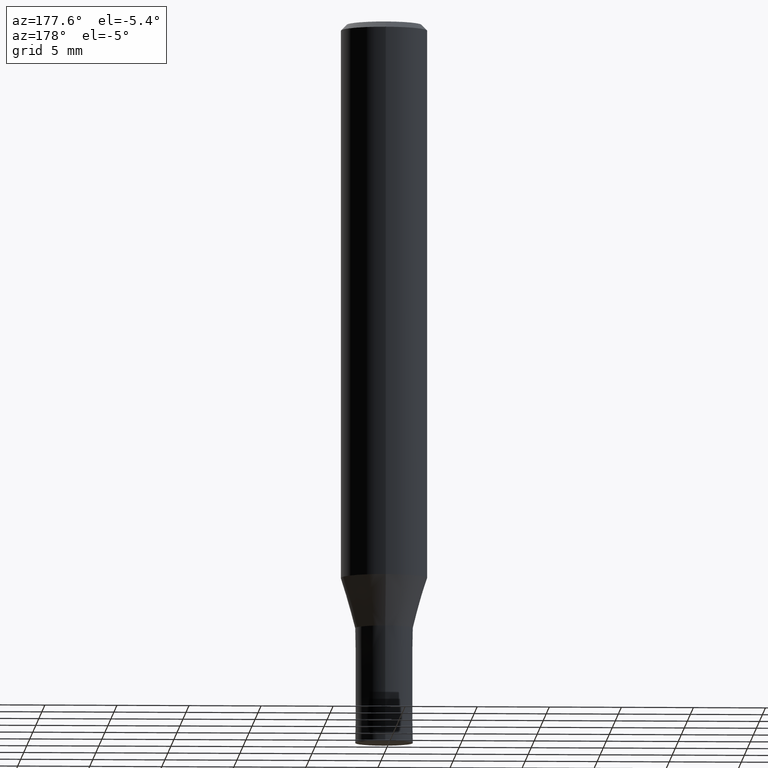
[diagram: clean part render]
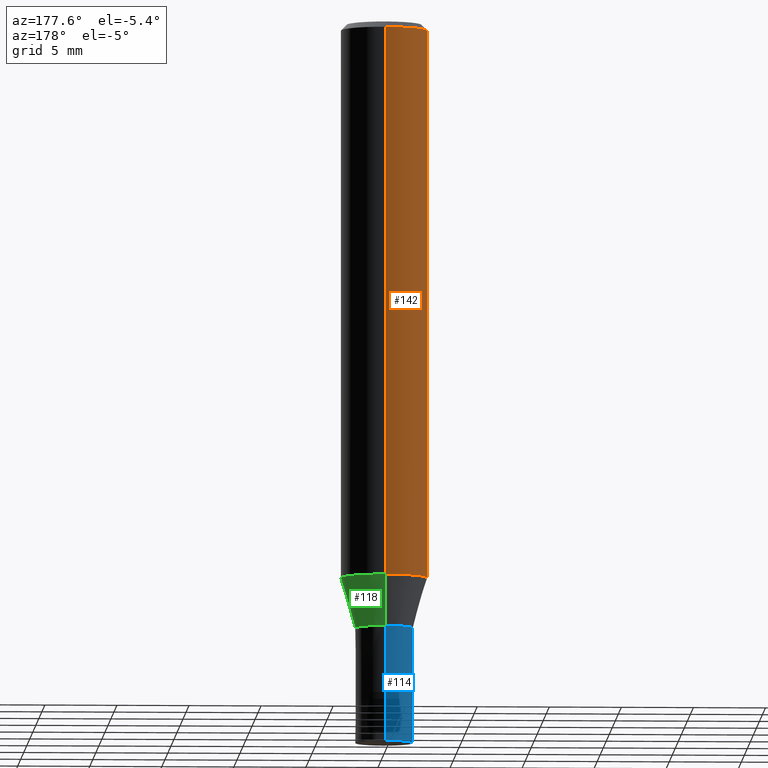
[diagram: same view with three faces highlighted in distinct colors, each labeled with its STEP entity id]
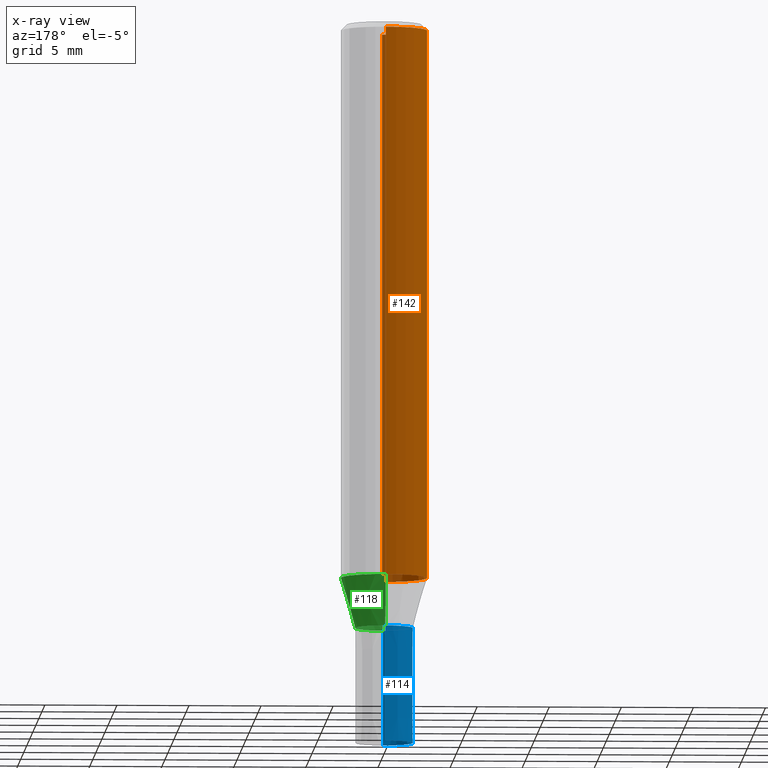
[diagram: x-ray of the same camera — body ghosted, the three highlighted faces saturated]
A machine part, auxiliary view with three faces highlighted in distinct colors.
The next image is the same camera in x-ray (body ghosted, the three faces saturated) — at least one of them is partly hidden behind the body in this view.
Their STEP definitions:

[orange] entity #142 — the highlighted cylindrical surface (partial cylindrical patch) has radius 3 mm, axis along (-0, -0, 1).
#90=VERTEX_POINT('',#212);
#106=VERTEX_POINT('',#229);
#126=VERTEX_POINT('',#254);
#132=EDGE_CURVE('',#162,#106,#260,.T.);
#140=EDGE_CURVE('',#106,#126,#269,.T.);
#142=ADVANCED_FACE('',(#271),#272,.T.);
#150=EDGE_CURVE('',#126,#90,#280,.T.);
#162=VERTEX_POINT('',#294);
#168=EDGE_CURVE('',#162,#90,#300,.T.);
#212=CARTESIAN_POINT('',(0.0,3.0,-38.513));
#229=CARTESIAN_POINT('',(3.67381906146713E-016,-3.0,-0.399999999999999));
#254=CARTESIAN_POINT('',(0.0,3.0,-0.399999999999999));
#260=LINE('',#397,#398);
#269=CIRCLE('',#412,3.0);
#271=FACE_OUTER_BOUND('',#414,.T.);
#272=CYLINDRICAL_SURFACE('',#415,3.0);
#280=LINE('',#426,#427);
#294=CARTESIAN_POINT('',(3.67381906146713E-016,-3.0,-38.513));
#300=CIRCLE('',#452,3.0);
#397=CARTESIAN_POINT('',(3.67381906146713E-016,-3.0,-19.4565));
#398=VECTOR('',#547,1.0);
#412=AXIS2_PLACEMENT_3D('',#558,#559,#560);
#414=EDGE_LOOP('',(#562,#563,#564,#565));
#415=AXIS2_PLACEMENT_3D('',#566,#567,#568);
#426=CARTESIAN_POINT('',(-3.67381906146713E-016,3.0,-19.4565));
#427=VECTOR('',#570,1.0);
#452=AXIS2_PLACEMENT_3D('',#595,#596,#597);
#547=DIRECTION('',(-0.0,-0.0,1.0));
#558=CARTESIAN_POINT('',(0.0,0.0,-0.399999999999999));
#559=DIRECTION('',(0.0,0.0,-1.0));
#560=DIRECTION('',(0.0,1.0,0.0));
#562=ORIENTED_EDGE('',*,*,#150,.T.);
#563=ORIENTED_EDGE('',*,*,#168,.F.);
#564=ORIENTED_EDGE('',*,*,#132,.T.);
#565=ORIENTED_EDGE('',*,*,#140,.T.);
#566=CARTESIAN_POINT('',(0.0,0.0,-19.4565));
#567=DIRECTION('',(-0.0,-0.0,1.0));
#568=DIRECTION('',(0.0,1.0,0.0));
#570=DIRECTION('',(0.0,0.0,-1.0));
#595=CARTESIAN_POINT('',(0.0,0.0,-38.513));
#596=DIRECTION('',(0.0,0.0,-1.0));
#597=DIRECTION('',(0.0,1.0,0.0));

[blue] entity #114 — the highlighted conical surface has half-angle 0.001 deg.
#84=VERTEX_POINT('',#205);
#92=EDGE_CURVE('',#180,#178,#214,.T.);
#114=ADVANCED_FACE('',(#237),#238,.T.);
#134=EDGE_CURVE('',#156,#180,#262,.T.);
#144=EDGE_CURVE('',#178,#84,#274,.T.);
#156=VERTEX_POINT('',#286);
#166=EDGE_CURVE('',#156,#84,#298,.T.);
#178=VERTEX_POINT('',#313);
#180=VERTEX_POINT('',#315);
#205=CARTESIAN_POINT('',(0.0,2.0,-50.0));
#214=CIRCLE('',#341,1.9999);
#237=FACE_OUTER_BOUND('',#369,.T.);
#238=CONICAL_SURFACE('',#370,1.99995,1.24999999993476E-005);
#262=LINE('',#401,#402);
#274=LINE('',#418,#419);
#286=CARTESIAN_POINT('',(2.44921270764475E-016,-2.0,-50.0));
#298=CIRCLE('',#449,2.0);
#313=CARTESIAN_POINT('',(0.0,1.9999,-42.0));
#315=CARTESIAN_POINT('',(2.44909024700937E-016,-1.9999,-42.0));
#341=AXIS2_PLACEMENT_3D('',#485,#486,#487);
#369=EDGE_LOOP('',(#509,#510,#511,#512));
#370=AXIS2_PLACEMENT_3D('',#513,#514,#515);
#401=CARTESIAN_POINT('',(2.44915147732706E-016,-1.99995,-46.0));
#402=VECTOR('',#548,1.0);
#418=CARTESIAN_POINT('',(-2.44915147732706E-016,1.99995,-46.0));
#419=VECTOR('',#569,1.0);
#449=AXIS2_PLACEMENT_3D('',#592,#593,#594);
#485=CARTESIAN_POINT('',(0.0,0.0,-42.0));
#486=DIRECTION('',(0.0,0.0,-1.0));
#487=DIRECTION('',(0.0,1.0,0.0));
#509=ORIENTED_EDGE('',*,*,#144,.T.);
#510=ORIENTED_EDGE('',*,*,#166,.F.);
#511=ORIENTED_EDGE('',*,*,#134,.T.);
#512=ORIENTED_EDGE('',*,*,#92,.T.);
#513=CARTESIAN_POINT('',(0.0,0.0,-46.0));
#514=DIRECTION('',(0.0,-0.0,-1.0));
#515=DIRECTION('',(0.0,1.0,0.0));
#548=DIRECTION('',(-1.53075794215821E-021,1.24999999990221E-005,0.999999999921875));
#569=DIRECTION('',(-1.53075794215821E-021,1.24999999990221E-005,-0.999999999921875));
#592=CARTESIAN_POINT('',(0.0,0.0,-50.0));
#593=DIRECTION('',(0.0,0.0,-1.0));
#594=DIRECTION('',(0.0,1.0,0.0));

[green] entity #118 — the highlighted conical surface has half-angle 16.002 deg.
#112=VERTEX_POINT('',#235);
#118=ADVANCED_FACE('',(#242),#243,.T.);
#128=VERTEX_POINT('',#256);
#138=EDGE_CURVE('',#148,#128,#267,.T.);
#148=VERTEX_POINT('',#278);
#154=EDGE_CURVE('',#112,#128,#284,.T.);
#170=EDGE_CURVE('',#182,#148,#302,.T.);
#182=VERTEX_POINT('',#317);
#184=EDGE_CURVE('',#112,#182,#319,.T.);
#235=CARTESIAN_POINT('',(0.0,2.99995,-38.513));
#242=FACE_OUTER_BOUND('',#375,.T.);
#243=CONICAL_SURFACE('',#376,2.49995,0.279284171542493);
#256=CARTESIAN_POINT('',(3.67375783114944E-016,-2.99995,-38.513));
#267=LINE('',#408,#409);
#278=CARTESIAN_POINT('',(2.44915147732706E-016,-1.99995,-42.0));
#284=CIRCLE('',#433,2.99995);
#302=CIRCLE('',#455,1.99995);
#317=CARTESIAN_POINT('',(0.0,1.99995,-42.0));
#319=LINE('',#473,#474);
#375=EDGE_LOOP('',(#520,#521,#522,#523));
#376=AXIS2_PLACEMENT_3D('',#524,#525,#526);
#408=CARTESIAN_POINT('',(3.06145465423825E-016,-2.49995,-40.2565));
#409=VECTOR('',#557,1.0);
#433=AXIS2_PLACEMENT_3D('',#574,#575,#576);
#455=AXIS2_PLACEMENT_3D('',#598,#599,#600);
#473=CARTESIAN_POINT('',(-3.06145465423825E-016,2.49995,-40.2565));
#474=VECTOR('',#623,1.0);
#520=ORIENTED_EDGE('',*,*,#184,.F.);
#521=ORIENTED_EDGE('',*,*,#154,.T.);
#522=ORIENTED_EDGE('',*,*,#138,.F.);
#523=ORIENTED_EDGE('',*,*,#170,.F.);
#524=CARTESIAN_POINT('',(0.0,0.0,-40.2565));
#525=DIRECTION('',(-0.0,-0.0,1.0));
#526=DIRECTION('',(0.0,1.0,0.0));
#557=DIRECTION('',(3.3758432755158E-017,-0.275667626987133,0.961253015304131));
#574=CARTESIAN_POINT('',(0.0,0.0,-38.513));
#575=DIRECTION('',(0.0,0.0,-1.0));
#576=DIRECTION('',(0.0,1.0,0.0));
#598=CARTESIAN_POINT('',(0.0,0.0,-42.0));
#599=DIRECTION('',(0.0,0.0,-1.0));
#600=DIRECTION('',(0.0,1.0,0.0));
#623=DIRECTION('',(3.3758432755158E-017,-0.275667626987133,-0.961253015304131));